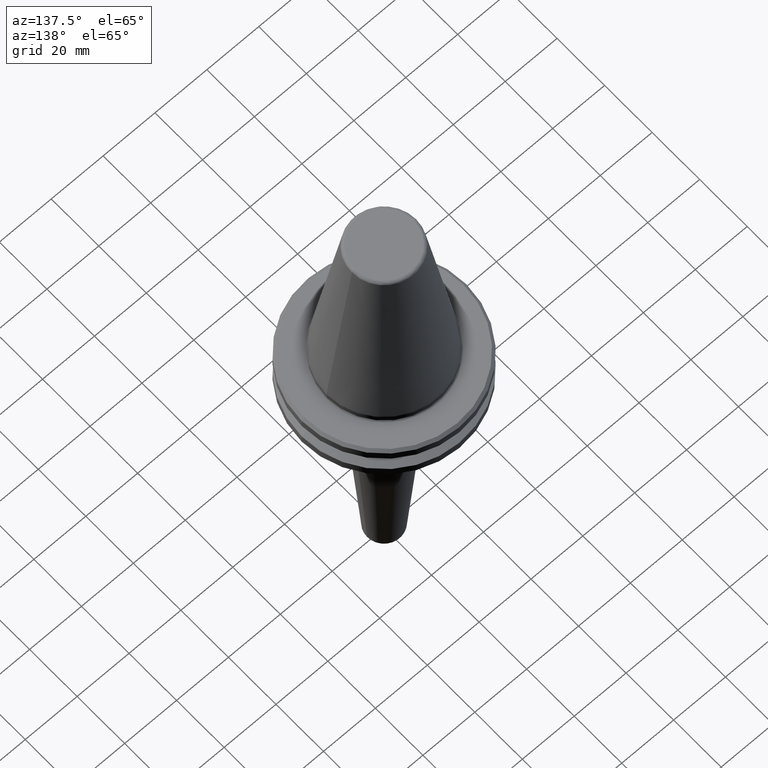
[diagram: clean part render]
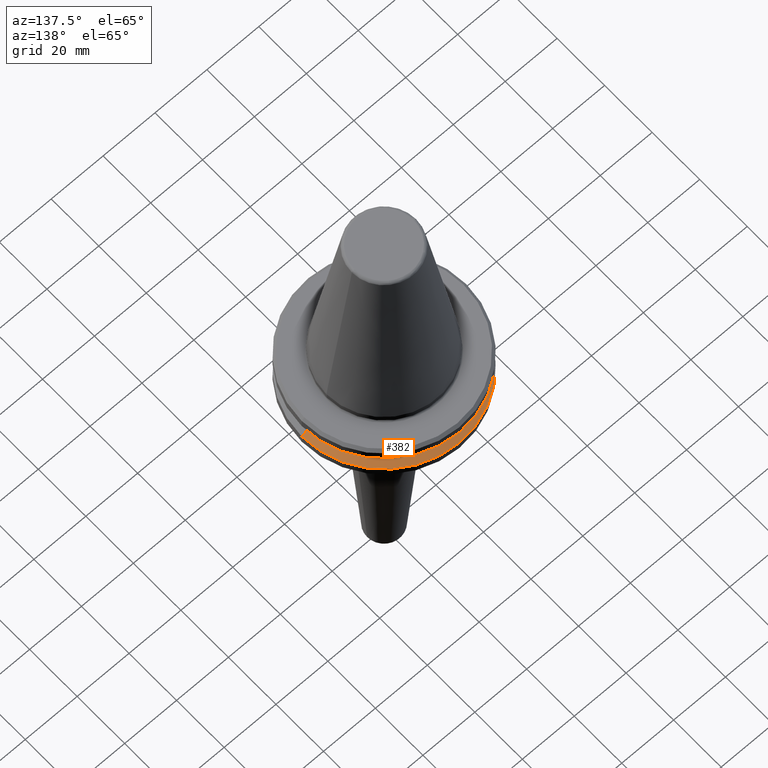
[diagram: same view with one face highlighted and labeled with its STEP entity id]
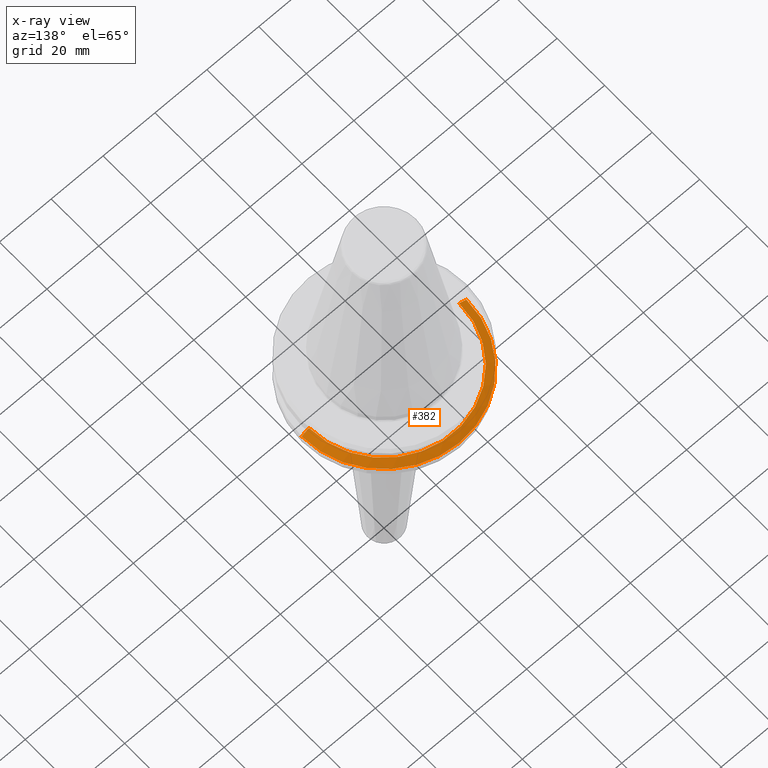
[diagram: x-ray of the same camera — body ghosted, the highlighted face saturated]
A machine part, auxiliary view. The second image highlights one B-rep face of the part: STEP entity #382.
The next image is the same camera in x-ray: the body ghosted, the highlighted face saturated — about 0% of this face is hidden behind the body in this view.
In plain terms, the highlighted conical surface has half-angle 60 deg.
Its self-contained STEP definition (entity closure, byte-faithful):
#90 = EDGE_CURVE ( 'NONE', #176, #735, #242, .T. ) ;
#94 = AXIS2_PLACEMENT_3D ( 'NONE', #1095, #537, #1185 ) ;
#126 = VERTEX_POINT ( 'NONE', #1262 ) ;
#131 = CONICAL_SURFACE ( 'NONE', #687, 31.75000000000000700, 1.047197551196604100 ) ;
#140 = CARTESIAN_POINT ( 'NONE',  ( 31.75000000000000700, 3.888253587292847300E-015, -14.62183664205671500 ) ) ;
#156 = VERTEX_POINT ( 'NONE', #972 ) ;
#161 = FACE_OUTER_BOUND ( 'NONE', #762, .T. ) ;
#176 = VERTEX_POINT ( 'NONE', #1056 ) ;
#179 = CIRCLE ( 'NONE', #94, 31.75000000000000700 ) ;
#204 = VECTOR ( 'NONE', #811, 1000.000000000000000 ) ;
#242 = LINE ( 'NONE', #484, #204 ) ;
#292 = VECTOR ( 'NONE', #956, 1000.000000000000000 ) ;
#382 = ADVANCED_FACE ( 'NONE', ( #161 ), #131, .T. ) ;
#395 = ORIENTED_EDGE ( 'NONE', *, *, #831, .F. ) ;
#484 = CARTESIAN_POINT ( 'NONE',  ( 31.75000000000000700, 3.888253587292847300E-015, -14.62183664205671700 ) ) ;
#489 = ORIENTED_EDGE ( 'NONE', *, *, #1052, .T. ) ;
#534 = CIRCLE ( 'NONE', #853, 28.94089653438084400 ) ;
#537 = DIRECTION ( 'NONE',  ( -0.0000000000000000000, -0.0000000000000000000, 1.000000000000000000 ) ) ;
#554 = DIRECTION ( 'NONE',  ( 0.0000000000000000000, 0.0000000000000000000, -1.000000000000000000 ) ) ;
#658 = EDGE_CURVE ( 'NONE', #126, #176, #534, .T. ) ;
#687 = AXIS2_PLACEMENT_3D ( 'NONE', #1254, #733, #1166 ) ;
#701 = ORIENTED_EDGE ( 'NONE', *, *, #90, .T. ) ;
#733 = DIRECTION ( 'NONE',  ( 0.0000000000000000000, 0.0000000000000000000, -1.000000000000000000 ) ) ;
#735 = VERTEX_POINT ( 'NONE', #140 ) ;
#739 = ORIENTED_EDGE ( 'NONE', *, *, #658, .T. ) ;
#762 = EDGE_LOOP ( 'NONE', ( #739, #701, #489, #395 ) ) ;
#811 = DIRECTION ( 'NONE',  ( 0.8660254037844418200, 1.060575238724910700E-016, -0.4999999999999945000 ) ) ;
#831 = EDGE_CURVE ( 'NONE', #126, #156, #1068, .T. ) ;
#853 = AXIS2_PLACEMENT_3D ( 'NONE', #1111, #554, #1194 ) ;
#956 = DIRECTION ( 'NONE',  ( -0.8660254037844418200, 0.0000000000000000000, -0.4999999999999945000 ) ) ;
#972 = CARTESIAN_POINT ( 'NONE',  ( -31.75000000000000700, 0.0000000000000000000, -14.62183664205671500 ) ) ;
#1052 = EDGE_CURVE ( 'NONE', #735, #156, #179, .T. ) ;
#1056 = CARTESIAN_POINT ( 'NONE',  ( 28.94089653438084400, 3.716245608910601600E-015, -13.00000000000000700 ) ) ;
#1068 = LINE ( 'NONE', #1078, #292 ) ;
#1078 = CARTESIAN_POINT ( 'NONE',  ( -31.75000000000000700, 0.0000000000000000000, -14.62183664205671700 ) ) ;
#1095 = CARTESIAN_POINT ( 'NONE',  ( 0.0000000000000000000, 0.0000000000000000000, -14.62183664205671500 ) ) ;
#1111 = CARTESIAN_POINT ( 'NONE',  ( 0.0000000000000000000, 0.0000000000000000000, -13.00000000000000700 ) ) ;
#1166 = DIRECTION ( 'NONE',  ( -1.000000000000000000, 0.0000000000000000000, 0.0000000000000000000 ) ) ;
#1185 = DIRECTION ( 'NONE',  ( -1.000000000000000000, 0.0000000000000000000, 0.0000000000000000000 ) ) ;
#1194 = DIRECTION ( 'NONE',  ( -1.000000000000000000, 0.0000000000000000000, 0.0000000000000000000 ) ) ;
#1254 = CARTESIAN_POINT ( 'NONE',  ( 0.0000000000000000000, 0.0000000000000000000, -14.62183664205671700 ) ) ;
#1262 = CARTESIAN_POINT ( 'NONE',  ( -28.94089653438084400, 0.0000000000000000000, -13.00000000000000700 ) ) ;